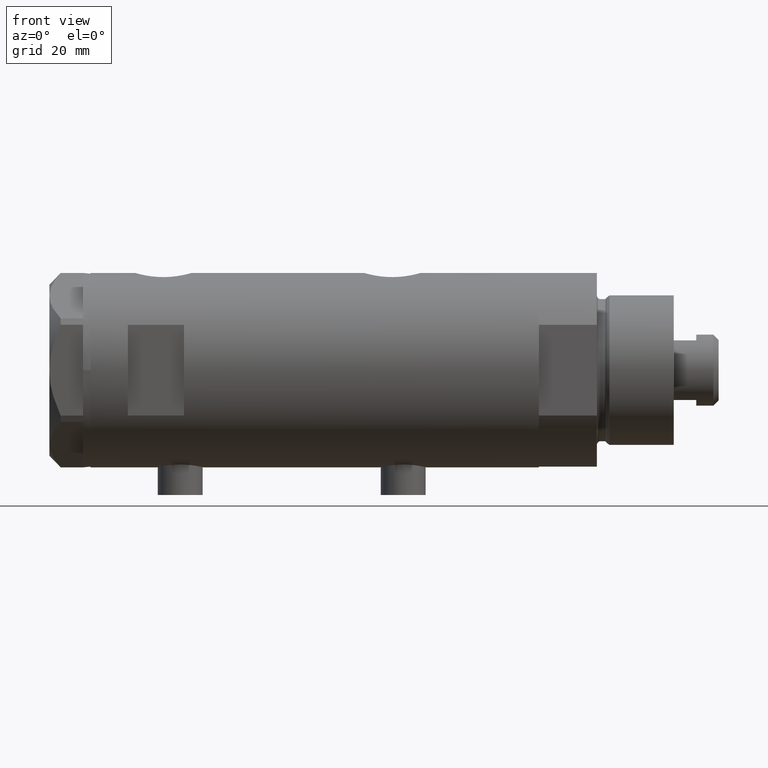
[diagram: clean part render]
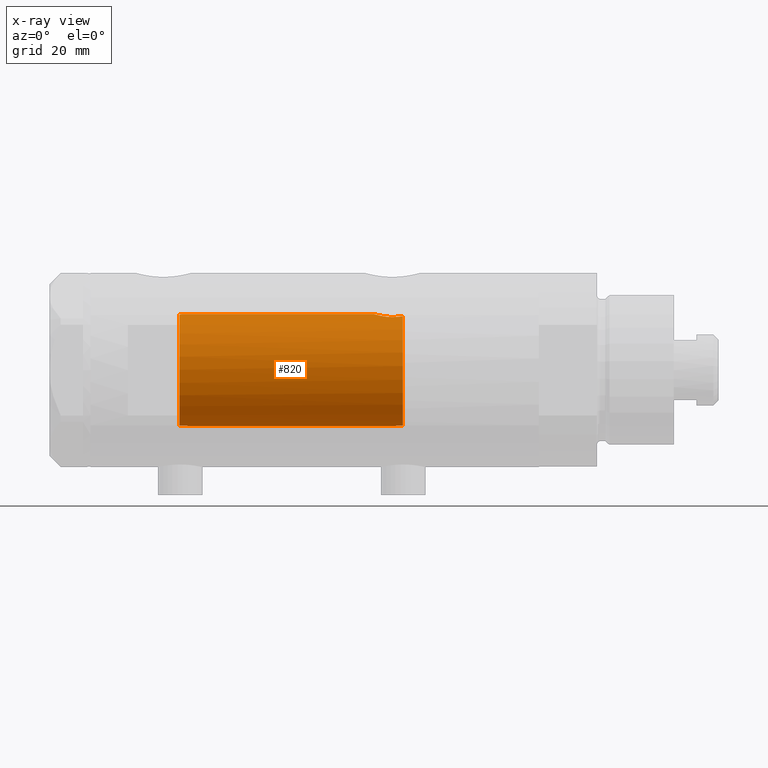
[diagram: x-ray — body ghosted, one internal face saturated and labeled with its STEP entity id]
A machine part, front view, then the same camera in x-ray: the body is ghosted and one INTERNAL B-rep face — a face not visible from any outside direction — is saturated and labeled: STEP entity #820.
In plain terms, the highlighted cylindrical surface (partial cylindrical patch) has radius 15 mm, axis along (1, 0, -0).
Its self-contained STEP definition (entity closure, byte-faithful):
#26 = CARTESIAN_POINT ( 'NONE',  ( -14.80570803900863908, -2.410056876876584209, -22.93854637206098346 ) ) ;
#102 = CARTESIAN_POINT ( 'NONE',  ( 14.85289483991917336, -2.102865829523694607, 36.08360377881606240 ) ) ;
#116 = VERTEX_POINT ( 'NONE', #4165 ) ;
#142 = EDGE_CURVE ( 'NONE', #1503, #1249, #825, .T. ) ;
#258 = DIRECTION ( 'NONE',  ( -0.000000000000000000, -0.000000000000000000, -1.000000000000000000 ) ) ;
#269 = CARTESIAN_POINT ( 'NONE',  ( 14.18781489734108092, -4.868896704194243696, -20.88045969036060967 ) ) ;
#295 = CARTESIAN_POINT ( 'NONE',  ( 14.90017778876745069, -1.739641523727900152, -16.22630925695125015 ) ) ;
#343 = VERTEX_POINT ( 'NONE', #860 ) ;
#363 = CARTESIAN_POINT ( 'NONE',  ( 0.000000000000000000, 0.000000000000000000, -23.57499999999999929 ) ) ;
#365 = VERTEX_POINT ( 'NONE', #3668 ) ;
#403 = CARTESIAN_POINT ( 'NONE',  ( -14.95054302956255121, -1.224431043437662403, -21.48958290830103479 ) ) ;
#508 = CARTESIAN_POINT ( 'NONE',  ( 15.00000000000000000, 5.959273468635536151E-16, -15.90999999999999304 ) ) ;
#532 = CARTESIAN_POINT ( 'NONE',  ( -14.98541608527169977, -0.6823644196029143849, 33.56379464417550906 ) ) ;
#588 = CARTESIAN_POINT ( 'NONE',  ( -14.87260732106556560, -1.954338522023925773, 34.40646298750768040 ) ) ;
#605 = CARTESIAN_POINT ( 'NONE',  ( 14.99508877558422704, -0.4434836953032565421, -15.92507684727662998 ) ) ;
#664 = CARTESIAN_POINT ( 'NONE',  ( 14.25856516724843637, -4.658255869285517825, -22.19544016644937301 ) ) ;
#683 = CARTESIAN_POINT ( 'NONE',  ( 14.81710879718117901, -2.343063746046464946, -16.50567662538952973 ) ) ;
#719 = DIRECTION ( 'NONE',  ( 0.000000000000000000, 0.000000000000000000, 1.000000000000000000 ) ) ;
#741 = CARTESIAN_POINT ( 'NONE',  ( -14.98749134158487095, -0.6320459414166006429, -21.25099747929444760 ) ) ;
#760 = CARTESIAN_POINT ( 'NONE',  ( -14.83575030094399771, -2.214690538106014017, -22.50438890130202552 ) ) ;
#820 = ADVANCED_FACE ( 'NONE', ( #2581 ), #2961, .F. ) ;
#825 = B_SPLINE_CURVE_WITH_KNOTS ( 'NONE', 3,
 ( #2219, #1830, #3427, #1386, #3778, #664, #2243, #3867, #3008, #269, #1879, #1854, #2976, #3061, #4589, #3457, #1495, #4678, #1084, #4275, #999, #683, #3890, #295, #5103, #2595, #4192, #605, #2188, #3811 ),
 .UNSPECIFIED., .F., .F.,
 ( 4, 2, 2, 2, 2, 2, 2, 2, 2, 2, 2, 2, 2, 2, 4 ),
 ( 0.004672505804584289359, 0.005337629501999297151, 0.006002753199414304075, 0.006667876896829311867, 0.007333000594244319659, 0.007998124291659327451, 0.008663247989074335242, 0.009328371686489343034, 0.009993495383904349091, 0.01132374277873437161, 0.01265399017356439587, 0.01331911387097940366, 0.01398423756839441492, 0.01464936126580942619, 0.01531448496322443398 ),
 .UNSPECIFIED. ) ;
#860 = CARTESIAN_POINT ( 'NONE',  ( -14.79155164274525980, -2.491987158875424768, 36.17499999999999716 ) ) ;
#922 = CARTESIAN_POINT ( 'NONE',  ( -14.91608554980931878, -1.590576762727825333, 34.03869720243326924 ) ) ;
#999 = CARTESIAN_POINT ( 'NONE',  ( 14.72015646623405871, -2.909233045280599228, -16.85072079632731956 ) ) ;
#1010 = DIRECTION ( 'NONE',  ( -0.000000000000000000, -0.000000000000000000, -1.000000000000000000 ) ) ;
#1073 = EDGE_LOOP ( 'NONE', ( #3255, #3053, #1920, #3579, #5179, #2128, #4009, #1735 ) ) ;
#1084 = CARTESIAN_POINT ( 'NONE',  ( 14.49994286062941562, -3.853373987417219926, -17.77243896782910326 ) ) ;
#1144 = CARTESIAN_POINT ( 'NONE',  ( 0.000000000000000000, 0.000000000000000000, 36.17499999999999716 ) ) ;
#1188 = CARTESIAN_POINT ( 'NONE',  ( -14.91288509639097803, -1.618377549727004094, -21.76290984008951668 ) ) ;
#1213 = CARTESIAN_POINT ( 'NONE',  ( -14.96154495298569032, -1.083625483837067804, -21.41638979525009390 ) ) ;
#1249 = VERTEX_POINT ( 'NONE', #508 ) ;
#1267 = CARTESIAN_POINT ( 'NONE',  ( -14.83314878996174357, -2.232849285003168482, 34.83756080311607661 ) ) ;
#1286 = CARTESIAN_POINT ( 'NONE',  ( 15.00000000000000000, -0.3999014018875941545, 35.60999999999999233 ) ) ;
#1320 = CARTESIAN_POINT ( 'NONE',  ( -14.79723843696374708, -2.458094276708261194, 35.48731574989082560 ) ) ;
#1343 = CARTESIAN_POINT ( 'NONE',  ( -14.79155164274525980, -2.491987158875424768, 36.17499999999999716 ) ) ;
#1386 = CARTESIAN_POINT ( 'NONE',  ( 14.33349657381506148, -4.422893686125036972, -22.81327841538881884 ) ) ;
#1397 = AXIS2_PLACEMENT_3D ( 'NONE', #3330, #1010, #4235 ) ;
#1457 = CARTESIAN_POINT ( 'NONE',  ( 15.00000000000000000, 1.836970198721029589E-15, 59.97500000000000142 ) ) ;
#1461 = LINE ( 'NONE', #2259, #3110 ) ;
#1495 = CARTESIAN_POINT ( 'NONE',  ( 14.33594561531104006, -4.414979644548148840, -18.71953393419243028 ) ) ;
#1503 = VERTEX_POINT ( 'NONE', #4564 ) ;
#1548 = CARTESIAN_POINT ( 'NONE',  ( -14.88625129008227077, -1.847379311388060108, -21.98312992433159963 ) ) ;
#1614 = VERTEX_POINT ( 'NONE', #3072 ) ;
#1700 = CARTESIAN_POINT ( 'NONE',  ( -14.94313933514151493, -1.312299271472206152, 33.84026966946924375 ) ) ;
#1718 = CARTESIAN_POINT ( 'NONE',  ( 14.92029983160078466, -1.555365312915176323, 35.86109703141411842 ) ) ;
#1735 = ORIENTED_EDGE ( 'NONE', *, *, #2968, .T. ) ;
#1744 = CARTESIAN_POINT ( 'NONE',  ( 15.00000000000000000, 0.000000000000000000, 35.60999999999999233 ) ) ;
#1830 = CARTESIAN_POINT ( 'NONE',  ( 14.42775250319759905, -4.105775281508735830, -23.39411445102907905 ) ) ;
#1833 = VERTEX_POINT ( 'NONE', #4817 ) ;
#1854 = CARTESIAN_POINT ( 'NONE',  ( 14.19858338301463085, -4.837406781463694294, -20.21114104090498387 ) ) ;
#1879 = CARTESIAN_POINT ( 'NONE',  ( 14.18786347641749934, -4.868757996482118600, -20.65822300400293088 ) ) ;
#1920 = ORIENTED_EDGE ( 'NONE', *, *, #142, .F. ) ;
#1962 = CARTESIAN_POINT ( 'NONE',  ( -14.79053751558745589, -2.497999199359361544, -23.57499999999999929 ) ) ;
#1998 = DIRECTION ( 'NONE',  ( 0.000000000000000000, 0.000000000000000000, -1.000000000000000000 ) ) ;
#2004 = CARTESIAN_POINT ( 'NONE',  ( -14.84760220014584498, -2.134792770974418108, -22.36421818480345181 ) ) ;
#2064 = VERTEX_POINT ( 'NONE', #3160 ) ;
#2128 = ORIENTED_EDGE ( 'NONE', *, *, #4310, .F. ) ;
#2144 = CARTESIAN_POINT ( 'NONE',  ( -14.82167156606024427, -2.306788152106015399, 34.99615114601640187 ) ) ;
#2166 = CARTESIAN_POINT ( 'NONE',  ( -14.95581892566389470, -1.161262481484112374, 33.75437042154403855 ) ) ;
#2188 = CARTESIAN_POINT ( 'NONE',  ( 15.00000000000000533, -0.2216692655473427032, -15.90999999999999659 ) ) ;
#2219 = CARTESIAN_POINT ( 'NONE',  ( 14.46277203719950677, -3.978470183374504199, -23.57499999999999929 ) ) ;
#2224 = AXIS2_PLACEMENT_3D ( 'NONE', #1144, #719, #4664 ) ;
#2243 = CARTESIAN_POINT ( 'NONE',  ( 14.23846660849503465, -4.718934182878723682, -21.97901121469807961 ) ) ;
#2259 = CARTESIAN_POINT ( 'NONE',  ( -15.00000000000000000, 0.000000000000000000, 59.97500000000000142 ) ) ;
#2328 = CARTESIAN_POINT ( 'NONE',  ( -15.00000000000000355, -0.1613061104920439359, -21.17500000000000782 ) ) ;
#2349 = AXIS2_PLACEMENT_3D ( 'NONE', #363, #1998, #4422 ) ;
#2354 = CARTESIAN_POINT ( 'NONE',  ( -14.79268570220017054, -2.485279885960841817, -23.25727165314100375 ) ) ;
#2378 = CARTESIAN_POINT ( 'NONE',  ( -15.00000000000000000, 0.000000000000000000, -21.17500000000000071 ) ) ;
#2402 = VECTOR ( 'NONE', #3091, 1000.000000000000000 ) ;
#2526 = CIRCLE ( 'NONE', #2349, 15.00000000000000000 ) ;
#2547 = CARTESIAN_POINT ( 'NONE',  ( -14.99999999999999822, -0.1716226368084269316, 33.47500000000000853 ) ) ;
#2579 = CARTESIAN_POINT ( 'NONE',  ( -14.78989771875219894, -2.501882951377200737, 35.83131597653684253 ) ) ;
#2581 = FACE_OUTER_BOUND ( 'NONE', #1073, .T. ) ;
#2595 = CARTESIAN_POINT ( 'NONE',  ( 14.96064712090283777, -1.106639041422191383, -16.03238179736370839 ) ) ;
#2798 = CARTESIAN_POINT ( 'NONE',  ( -14.92627313122705779, -1.491421694539937226, -21.66230514635739368 ) ) ;
#2872 = CARTESIAN_POINT ( 'NONE',  ( 14.93900636919599911, -1.364886281976677163, 35.80122504971313191 ) ) ;
#2910 = CARTESIAN_POINT ( 'NONE',  ( -14.97699254061833152, -0.8454257663520247101, 33.61597868826832780 ) ) ;
#2961 = CYLINDRICAL_SURFACE ( 'NONE', #1397, 15.00000000000000000 ) ;
#2968 = EDGE_CURVE ( 'NONE', #343, #365, #4676, .T. ) ;
#2976 = CARTESIAN_POINT ( 'NONE',  ( 14.20926245015525780, -4.806160851464703399, -19.98877327795613468 ) ) ;
#3008 = CARTESIAN_POINT ( 'NONE',  ( 14.19797987272029438, -4.839174951492909216, -21.32241451501409912 ) ) ;
#3053 = ORIENTED_EDGE ( 'NONE', *, *, #3770, .T. ) ;
#3061 = CARTESIAN_POINT ( 'NONE',  ( 14.23984499268010495, -4.714778477509577570, -19.55508258614763761 ) ) ;
#3072 = CARTESIAN_POINT ( 'NONE',  ( -14.79053751558745589, -2.497999199359361544, -23.57499999999999929 ) ) ;
#3091 = DIRECTION ( 'NONE',  ( -0.000000000000000000, -0.000000000000000000, -1.000000000000000000 ) ) ;
#3110 = VECTOR ( 'NONE', #258, 1000.000000000000000 ) ;
#3160 = CARTESIAN_POINT ( 'NONE',  ( 15.00000000000000000, 0.000000000000000000, 35.60999999999999233 ) ) ;
#3247 = CARTESIAN_POINT ( 'NONE',  ( -14.80379558280398733, -2.418854260473059625, 35.32035450491657969 ) ) ;
#3255 = ORIENTED_EDGE ( 'NONE', *, *, #4058, .F. ) ;
#3299 = CARTESIAN_POINT ( 'NONE',  ( -14.90147761301467533, -1.720422196468683662, 34.15294212931561191 ) ) ;
#3323 = CARTESIAN_POINT ( 'NONE',  ( 14.82638779339053769, -2.275571356824481750, 36.17499999999999716 ) ) ;
#3330 = CARTESIAN_POINT ( 'NONE',  ( 0.000000000000000000, 0.000000000000000000, 59.97500000000000142 ) ) ;
#3427 = CARTESIAN_POINT ( 'NONE',  ( 14.39424372609267699, -4.221002267729139668, -23.20393131093288730 ) ) ;
#3446 = B_SPLINE_CURVE_WITH_KNOTS ( 'NONE', 3,
 ( #1343, #4957, #2579, #1320, #3247, #2144, #1267, #4541, #588, #3299, #922, #1700, #2166, #2910, #532, #4175, #2547, #4981 ),
 .UNSPECIFIED., .F., .F.,
 ( 4, 2, 2, 2, 2, 2, 2, 2, 4 ),
 ( 0.003715686714229633498, 0.004229951999599992213, 0.004744217284970350494, 0.005258482570340708775, 0.005772747855711067924, 0.006287013141081425338, 0.006801278426451784487, 0.007315543711822143635, 0.007829808997192501049 ),
 .UNSPECIFIED. ) ;
#3457 = CARTESIAN_POINT ( 'NONE',  ( 14.30772250772360366, -4.505024017690380411, -18.92510806953218250 ) ) ;
#3533 = EDGE_CURVE ( 'NONE', #343, #1833, #3446, .T. ) ;
#3579 = ORIENTED_EDGE ( 'NONE', *, *, #4809, .T. ) ;
#3668 = CARTESIAN_POINT ( 'NONE',  ( 14.82638779339053769, -2.275571356824481750, 36.17499999999999716 ) ) ;
#3770 = EDGE_CURVE ( 'NONE', #2064, #1249, #4283, .T. ) ;
#3778 = CARTESIAN_POINT ( 'NONE',  ( 14.30602371879161439, -4.510400617436905790, -22.61165028800270704 ) ) ;
#3811 = CARTESIAN_POINT ( 'NONE',  ( 15.00000000000000000, 5.959273468635536151E-16, -15.90999999999999304 ) ) ;
#3867 = CARTESIAN_POINT ( 'NONE',  ( 14.20819413761015149, -4.809312895991456394, -21.54213251522165606 ) ) ;
#3890 = CARTESIAN_POINT ( 'NONE',  ( 14.84733308118440576, -2.144376633039214664, -16.40251912952714974 ) ) ;
#3901 = EDGE_CURVE ( 'NONE', #116, #1614, #4895, .T. ) ;
#4009 = ORIENTED_EDGE ( 'NONE', *, *, #3533, .F. ) ;
#4058 = EDGE_CURVE ( 'NONE', #2064, #365, #4508, .T. ) ;
#4165 = CARTESIAN_POINT ( 'NONE',  ( -15.00000000000000000, 0.000000000000000000, -21.17500000000000071 ) ) ;
#4175 = CARTESIAN_POINT ( 'NONE',  ( -14.99695275358353719, -0.3460123648701035060, 33.49310396824247960 ) ) ;
#4192 = CARTESIAN_POINT ( 'NONE',  ( 14.97537530859972144, -0.8874117095427761504, -15.98637464055827451 ) ) ;
#4235 = DIRECTION ( 'NONE',  ( -1.000000000000000000, 0.000000000000000000, 0.000000000000000000 ) ) ;
#4275 = CARTESIAN_POINT ( 'NONE',  ( 14.64727859494136908, -3.248701865452403581, -17.12674013696654285 ) ) ;
#4283 = LINE ( 'NONE', #1457, #2402 ) ;
#4310 = EDGE_CURVE ( 'NONE', #1833, #116, #1461, .T. ) ;
#4354 = CARTESIAN_POINT ( 'NONE',  ( -14.99740058099026108, -0.3199290537848245020, -21.19046469274585931 ) ) ;
#4380 = CARTESIAN_POINT ( 'NONE',  ( -14.87290636797879806, -1.950714596786577326, -22.10331246618853740 ) ) ;
#4422 = DIRECTION ( 'NONE',  ( -1.000000000000000000, 0.000000000000000000, 0.000000000000000000 ) ) ;
#4479 = CARTESIAN_POINT ( 'NONE',  ( 14.87720562886504538, -1.924385875533401125, 36.00241675737692049 ) ) ;
#4508 = B_SPLINE_CURVE_WITH_KNOTS ( 'NONE', 3,
 ( #1744, #1286, #4559, #2872, #1718, #4479, #102, #3323 ),
 .UNSPECIFIED., .F., .F.,
 ( 4, 2, 2, 4 ),
 ( 0.000000000000000000, 0.001182100180564266178, 0.001773150270846399375, 0.002364200361128532355 ),
 .UNSPECIFIED. ) ;
#4541 = CARTESIAN_POINT ( 'NONE',  ( -14.85859683553260346, -2.056701007386132041, 34.54343972450894285 ) ) ;
#4559 = CARTESIAN_POINT ( 'NONE',  ( 14.98404828787190546, -0.7909490205761878778, 35.65856230794190651 ) ) ;
#4564 = CARTESIAN_POINT ( 'NONE',  ( 14.46277203719950677, -3.978470183374504199, -23.57499999999999929 ) ) ;
#4589 = CARTESIAN_POINT ( 'NONE',  ( 14.25977760983849230, -4.654557688538887739, -19.34236805897652189 ) ) ;
#4664 = DIRECTION ( 'NONE',  ( 1.000000000000000000, 0.000000000000000000, 0.000000000000000000 ) ) ;
#4676 = CIRCLE ( 'NONE', #2224, 15.00000000000000000 ) ;
#4678 = CARTESIAN_POINT ( 'NONE',  ( 14.42796883436190036, -4.108435602805831977, -18.13226922759030302 ) ) ;
#4809 = EDGE_CURVE ( 'NONE', #1503, #1614, #2526, .T. ) ;
#4817 = CARTESIAN_POINT ( 'NONE',  ( -15.00000000000000000, 3.061618115931352638E-16, 33.47499999999999432 ) ) ;
#4895 = B_SPLINE_CURVE_WITH_KNOTS ( 'NONE', 3,
 ( #2378, #2328, #4354, #741, #5157, #1213, #403, #2798, #1188, #1548, #4380, #2004, #760, #26, #2354, #1962 ),
 .UNSPECIFIED., .F., .F.,
 ( 4, 2, 2, 2, 2, 2, 2, 4 ),
 ( 0.000000000000000000, 0.0004769863284873120481, 0.0009539726569746240963, 0.001430958985461935982, 0.001907945313949248193, 0.002384931642436559970, 0.002861917970923872397, 0.003815890627898487712 ),
 .UNSPECIFIED. ) ;
#4957 = CARTESIAN_POINT ( 'NONE',  ( -14.78924132900106692, -2.505700361584525027, 36.00413437470932365 ) ) ;
#4981 = CARTESIAN_POINT ( 'NONE',  ( -15.00000000000000000, 3.061618115931352638E-16, 33.47499999999999432 ) ) ;
#5103 = CARTESIAN_POINT ( 'NONE',  ( 14.92307637240703677, -1.532123959568891136, -16.15226557582075628 ) ) ;
#5157 = CARTESIAN_POINT ( 'NONE',  ( -14.98007298506453111, -0.7870736506658160270, -21.29674868555715861 ) ) ;
#5179 = ORIENTED_EDGE ( 'NONE', *, *, #3901, .F. ) ;